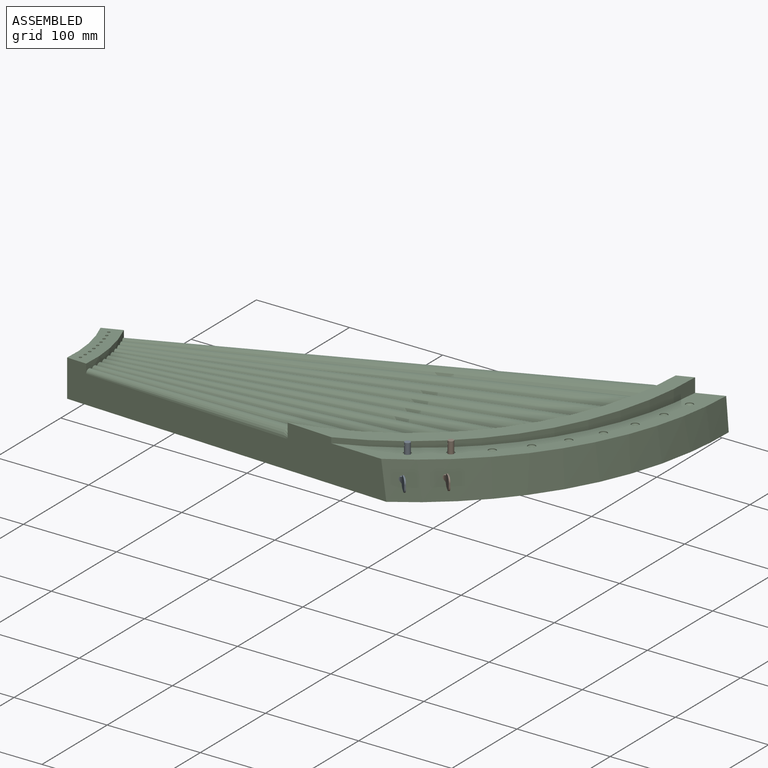
[diagram: assembled view]
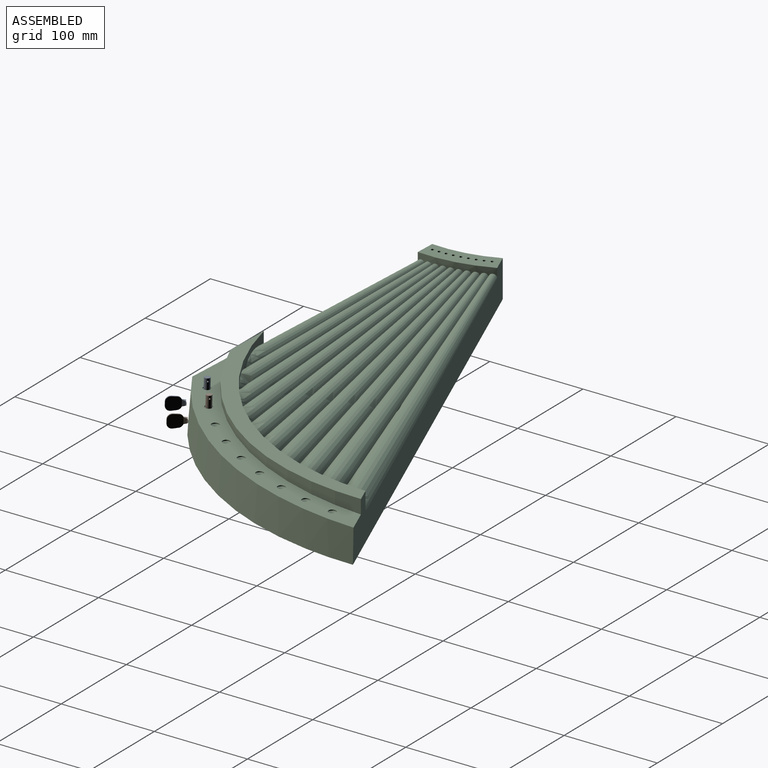
[diagram: assembled view, second angle]
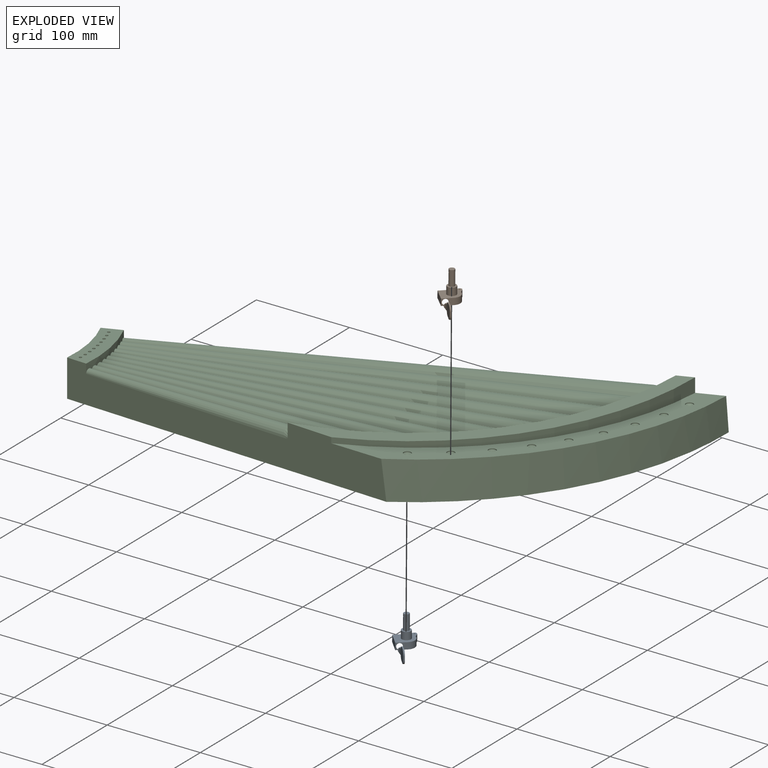
[diagram: exploded view]
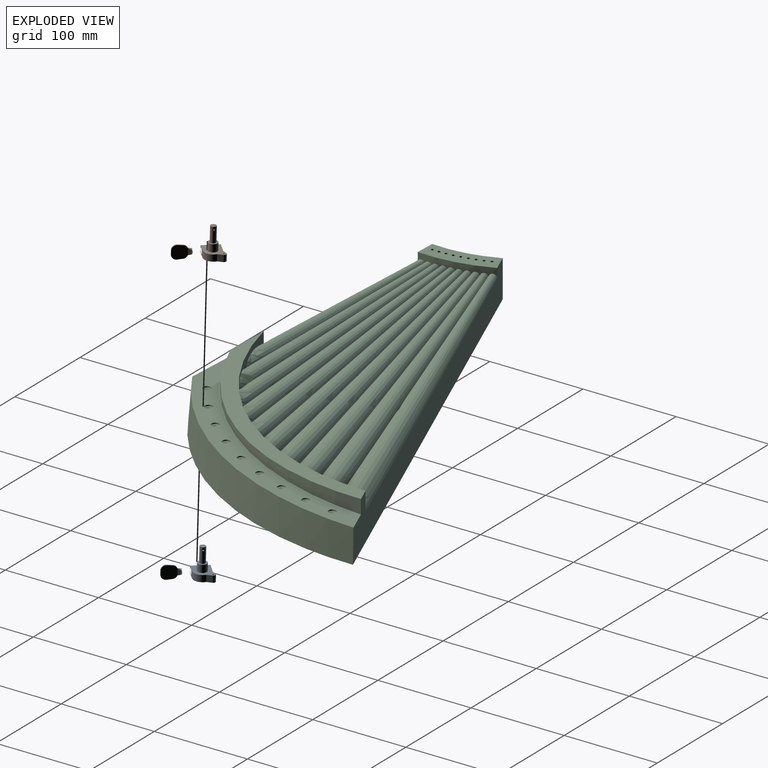
[diagram: exploded view, second angle]
ASSEMBLY  parts=3 mates=2
PART A: 36 faces, bbox 22.2x47x34.6 mm
  f0: plane 11.19x7mm, normal (0,-1,0), area 78.4mm2, adj f1,f8,f9,f10
  f1: cylinder r=9mm len=7mm, axis (0,0,-1), area 16.3mm2, adj f0,f2,f9,f10
  f2: plane 7x5.25mm, normal (-0.37,-0.93,0), area 39.6mm2, adj f1,f3,f9,f10
  f3: cylinder r=2.5mm len=7mm, axis (0,0,-1), area 40.8mm2, adj f2,f4,f9,f10
  f4: plane 7x5.25mm, normal (0.93,0.37,0), area 39.6mm2, adj f3,f5,f9,f10
  f5: cylinder r=9mm len=11.31mm, axis (0,0,-1), area 115.3mm2, adj f4,f6,f9,f10
  f6: plane 11.19x7mm, normal (0,1,0), area 50.1mm2, adj f5,f8,f9,f10,f15
  f7: cylinder r=0.75mm len=7mm, axis (0,0,-1), area 33mm2, adj f9,f10
  f8: plane 18x7mm, normal (-1,0,0), area 126mm2, adj f0,f6,f9,f10
  f9: plane 22.18x19.99mm, normal (0,0,1), area 360mm2, adj f0,f1,f2,f3,f4,f5,f6,f7
  f10: plane 22.18x19.99mm, normal (0,0,-1), area 286.1mm2, adj f0,f1,f2,f3,f4,f5,f6,f7
  f11: cylinder r=4.85mm len=9.7mm, axis (0,0,1), area 243.8mm2, adj f10,f12
  f12: plane 9.7x9.7mm, normal (0,0,-1), area 45.6mm2, adj f11,f13
  f13: cylinder r=3mm len=16mm, axis (0,0,1), area 295.9mm2, adj f12,f14,f34,f35
  f14: plane 6x6mm, normal (0,0,-1), area 28.3mm2, adj f13
  f15: cone r=3mm half-angle=1deg, axis (0,-1,0), area 153.6mm2, adj f6,f16,f17,f18,f19,f20,f21,f22
  f16: plane 4.05x4mm, normal (0,-0.31,0.95), area 6.7mm2, adj f15,f17,f19,f21,f29
  f17: plane 6.7x4.05mm, normal (0.95,0.31,0), area 16.1mm2, adj f15,f16,f18,f22,f26
  f18: plane 4.05x4mm, normal (0,-0.31,-0.95), area 6.7mm2, adj f15,f17,f19,f20,f30
  f19: plane 6.7x4.05mm, normal (-0.95,0.31,0), area 16.1mm2, adj f15,f16,f18,f23,f24
  f20: cylinder r=1mm len=3.05mm, axis (1,0,0), area 3.3mm2, adj f15,f18
  f21: cylinder r=1mm len=3.05mm, axis (1,0,0), area 3.3mm2, adj f15,f16
  f22: cylinder r=2mm len=4.72mm, axis (0,0,1), area 6.8mm2, adj f15,f17
  f23: cylinder r=2mm len=4.72mm, axis (0,0,1), area 6.8mm2, adj f15,f19
  f24: plane 15x14.09mm, normal (-1,0,0), area 185.6mm2, adj f19,f25,f27,f28,f29,f30,f31,f32
  f25: plane 5.31x1.45mm, normal (0,-0.09,1), area 7.7mm2, adj f24,f26,f29,f31
  f26: plane 15x14.09mm, normal (1,0,0), area 185.6mm2, adj f17,f25,f27,f28,f29,f30,f31,f32
  f27: plane 5.31x1.45mm, normal (0,-0.09,-1), area 7.7mm2, adj f24,f26,f30,f32
  f28: plane 4.09x1.45mm, normal (0,1,0), area 5.9mm2, adj f24,f26,f31,f32
  f29: cylinder r=5mm len=4.25mm, axis (1,0,0), area 8.1mm2, adj f16,f24,f25,f26
  f30: cylinder r=5mm len=4.25mm, axis (-1,0,0), area 8.1mm2, adj f18,f24,f26,f27
  f31: cylinder r=5mm len=5.44mm, axis (1,0,0), area 12mm2, adj f24,f25,f26,f28
  f32: cylinder r=5mm len=5.44mm, axis (1,0,0), area 12mm2, adj f24,f26,f27,f28
  f33: cylinder r=0.6mm len=5.4mm, axis (1,0,0), area 19.8mm2, adj f34,f35
  f34: bspline ~2x1.8mm, area 2.4mm2, adj f13,f33
  f35: bspline ~2x1.8mm, area 2.4mm2, adj f13,f33
PART B: same geometry as A
PART C: 56 faces, bbox 530.1x345.2x90.8 mm
  f0: cone r=14.6mm half-angle=1.2deg, axis (0.94,0.35,0), area 13814.3mm2, adj f1,f10,f13,f15,f36
  f1: cone r=14.6mm half-angle=1.2deg, axis (0.95,0.31,0), area 12960.5mm2, adj f0,f2,f10,f15,f16,f36
  f2: cone r=14.6mm half-angle=1.2deg, axis (0.96,0.27,0), area 12210.3mm2, adj f1,f3,f10,f16,f17,f36
  f3: cone r=14.6mm half-angle=1.2deg, axis (0.97,0.23,0), area 11387.4mm2, adj f2,f4,f10,f17,f18,f36
  f4: cone r=14.6mm half-angle=1.2deg, axis (0.98,0.19,0), area 10493.8mm2, adj f3,f5,f10,f18,f19,f36
  f5: cone r=14.6mm half-angle=1.2deg, axis (0.99,0.15,0), area 9530.7mm2, adj f4,f6,f10,f19,f20,f36
  f6: cone r=14.6mm half-angle=1.2deg, axis (0.99,0.1,0), area 8496.6mm2, adj f5,f7,f10,f20,f21,f36
  f7: cone r=14.6mm half-angle=1.2deg, axis (1,0.06,0), area 7384.9mm2, adj f6,f8,f10,f21,f22,f36
  f8: cone r=14.6mm half-angle=1.2deg, axis (1,0.02,0), area 6175.4mm2, adj f7,f9,f10,f22,f36
  f9: cone r=14.6mm half-angle=1.2deg, axis (1,-0.02,0), area 4983.9mm2, adj f8,f10,f11,f36
  f10: cylinder r=292mm len=269.12mm, axis (0,0,-1), area 2983.6mm2, adj f0,f1,f2,f3,f4,f5,f6,f7
  f11: plane 353.07x45.98mm, normal (-0.04,-1,0), area 12055.6mm2, adj f9,f10,f12,f14,f23,f24,f33,f35
  f12: cylinder r=308mm len=277.58mm, axis (0,0,-1), area 3265.4mm2, adj f11,f13,f14,f23
  f13: plane 528.16x208.96mm, normal (-0.37,0.93,0), area 17712mm2, adj f0,f10,f12,f14,f23,f24,f33,f35
  f14: plane 277.58x244.57mm, normal (0.01,-0.02,1), area 5887.8mm2, adj f10,f11,f12,f13
  f15: plane 180.14x62.77mm, normal (0,0,1), area 8.2mm2, adj f0,f1,f10
  f16: plane 166.96x50.45mm, normal (0,0,1), area 6.9mm2, adj f1,f2,f10
  f17: plane 150.96x38.79mm, normal (0,0,1), area 5.5mm2, adj f2,f3,f10
  f18: plane 132.01x28.09mm, normal (0,0,1), area 4.1mm2, adj f3,f4,f10
  f19: plane 109.95x18.62mm, normal (0,0,1), area 2.8mm2, adj f4,f5,f10
  f20: plane 84.55x10.7mm, normal (0,0,1), area 1.6mm2, adj f5,f6,f10
  f21: plane 55.37x4.66mm, normal (0,0,1), area 0.7mm2, adj f6,f7,f10
  f22: plane 21.6x0.91mm, normal (0,0,1), area 0.1mm2, adj f7,f8,f10
  f23: plane 290.25x222.42mm, normal (-0.01,0.02,1), area 8763.9mm2, adj f11,f12,f13,f33,f39,f41,f43,f45
  f24: cylinder r=135mm len=67.63mm, axis (0,0,1), area 2773.8mm2, adj f11,f13,f35,f37
  f25: cylinder r=1.5mm len=40mm, axis (0,0,1), area 377mm2, adj f35,f37
  f26: cylinder r=1.5mm len=40mm, axis (0,0,1), area 377mm2, adj f35,f37
  f27: cylinder r=1.5mm len=40mm, axis (0,0,1), area 377mm2, adj f35,f37
  f28: cylinder r=1.5mm len=40mm, axis (0,0,1), area 377mm2, adj f35,f37
  f29: cylinder r=1.5mm len=40mm, axis (0,0,1), area 377mm2, adj f35,f37
  f30: cylinder r=1.5mm len=40mm, axis (0,0,1), area 377mm2, adj f35,f37
  f31: cylinder r=1.5mm len=40mm, axis (0,0,1), area 377mm2, adj f35,f37
  f32: cylinder r=1.5mm len=40mm, axis (0,0,1), area 377mm2, adj f35,f37
  f33: bspline ~345.16x195.69mm, area 13381.2mm2, adj f11,f13,f23,f35
  f34: cylinder r=1.5mm len=40mm, axis (0,0,1), area 377mm2, adj f35,f37
  f35: plane 528.18x291.32mm, normal (0,0,-1), area 81472.2mm2, adj f11,f13,f24,f25,f26,f27,f28,f29
  f36: cylinder r=156mm len=76.23mm, axis (0,0,-1), area 534.7mm2, adj f0,f1,f2,f3,f4,f5,f6,f7
  f37: plane 76.23x32.98mm, normal (0,0,1), area 1484.9mm2, adj f11,f13,f24,f25,f26,f27,f28,f29
  f38: cone r=0mm half-angle=59deg, axis (-0.01,0.02,1), area 58.6mm2, adj f39
  f39: cylinder r=4mm len=8.02mm, axis (-0.01,0.02,1), area 25.1mm2, adj f23,f38
  f40: cone r=0mm half-angle=59deg, axis (-0.01,0.02,1), area 58.6mm2, adj f41
  f41: cylinder r=4mm len=8.02mm, axis (-0.01,0.02,1), area 25.1mm2, adj f23,f40
  f42: cone r=0mm half-angle=59deg, axis (-0.01,0.02,1), area 58.6mm2, adj f43
  f43: cylinder r=4mm len=8.02mm, axis (-0.01,0.02,1), area 25.1mm2, adj f23,f42
  f44: cone r=0mm half-angle=59deg, axis (-0.01,0.02,1), area 58.6mm2, adj f45
  f45: cylinder r=4mm len=8.02mm, axis (-0.01,0.02,1), area 25.1mm2, adj f23,f44
  f46: cone r=0mm half-angle=59deg, axis (-0.01,0.02,1), area 58.6mm2, adj f47
  f47: cylinder r=4mm len=8.02mm, axis (-0.01,0.02,1), area 25.1mm2, adj f23,f46
  f48: cone r=0mm half-angle=59deg, axis (-0.01,0.02,1), area 58.6mm2, adj f49
  f49: cylinder r=4mm len=8.02mm, axis (-0.01,0.02,1), area 25.1mm2, adj f23,f48
  f50: cone r=0mm half-angle=59deg, axis (-0.01,0.02,1), area 58.6mm2, adj f51
  f51: cylinder r=4mm len=8.02mm, axis (-0.01,0.02,1), area 25.1mm2, adj f23,f50
  f52: cone r=0mm half-angle=59deg, axis (-0.01,0.02,1), area 58.6mm2, adj f53
  f53: cylinder r=4mm len=8.02mm, axis (-0.01,0.02,1), area 25.1mm2, adj f23,f52
  f54: cone r=0mm half-angle=59deg, axis (-0.01,0.02,1), area 58.6mm2, adj f55
  f55: cylinder r=4mm len=8.02mm, axis (-0.01,0.02,1), area 25.1mm2, adj f23,f54
PLACE A rot(axis=(0.93,0.37,0),178.6deg) t=(233.52,-30.37,23.19)mm
PLACE B rot(axis=(0.92,0.38,0),178.6deg) t=(263.91,-7.21,24.14)mm
PLACE C t=(-109.86,-32.5,26.73)mm fixed
MATE revolute C.f52 <-> B.f13  axis (-0.01,0.02,1) through (263.81,-6.96,35.13)mm
MATE revolute C.f54 <-> A.f13  axis (-0.01,0.02,1) through (233.43,-30.12,34.18)mm
